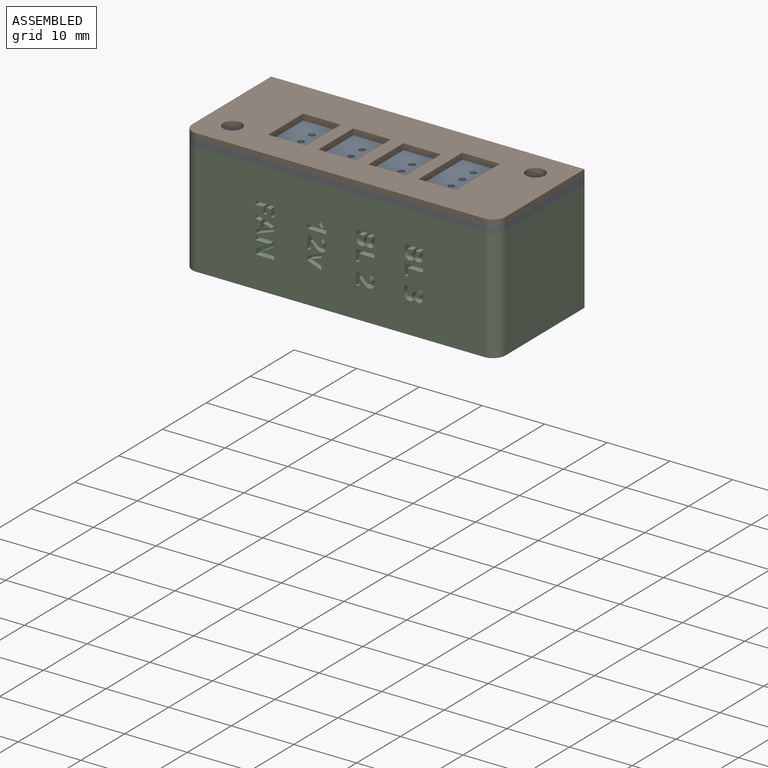
[diagram: assembled view]
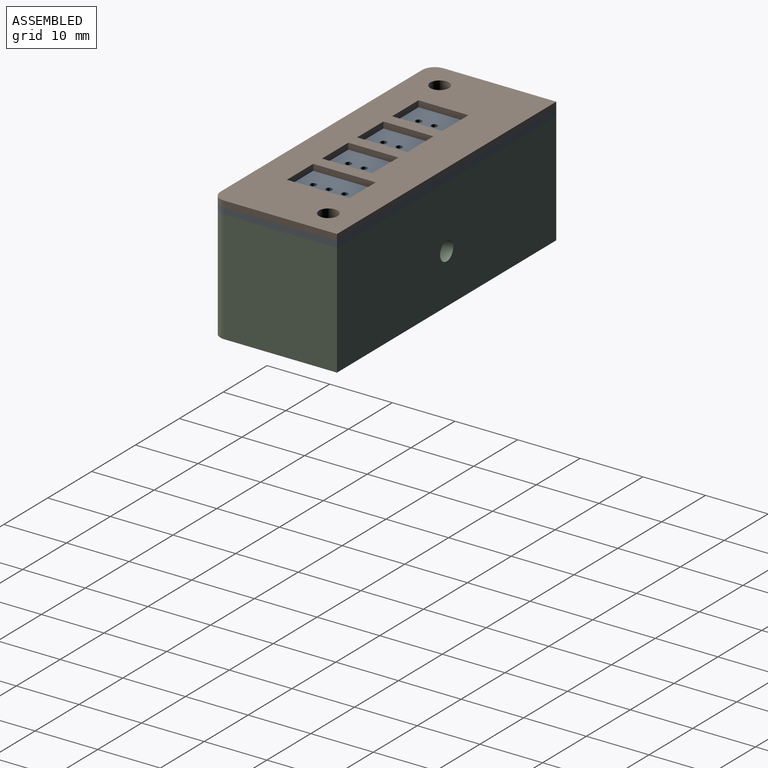
[diagram: assembled view, second angle]
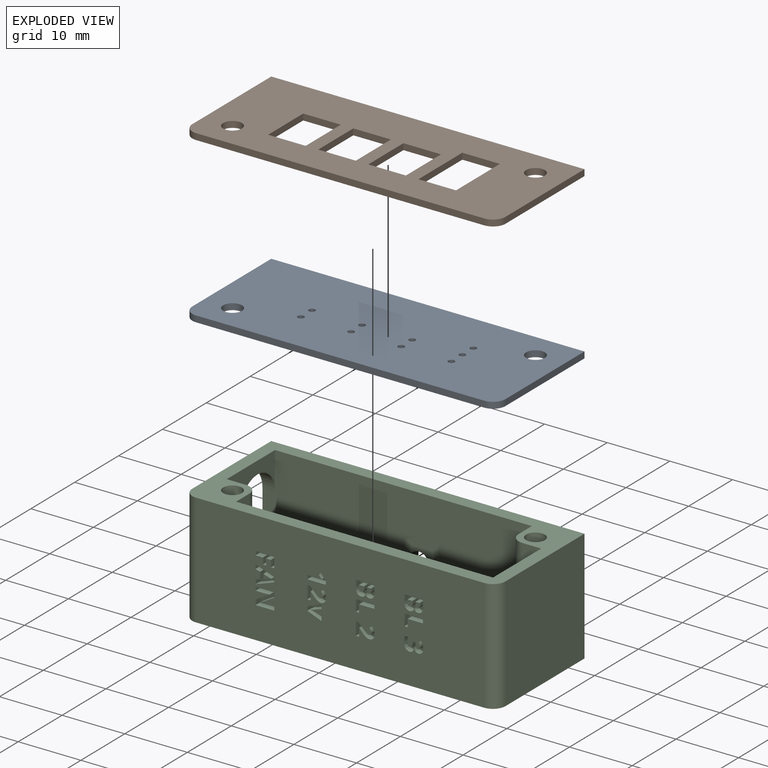
[diagram: exploded view]
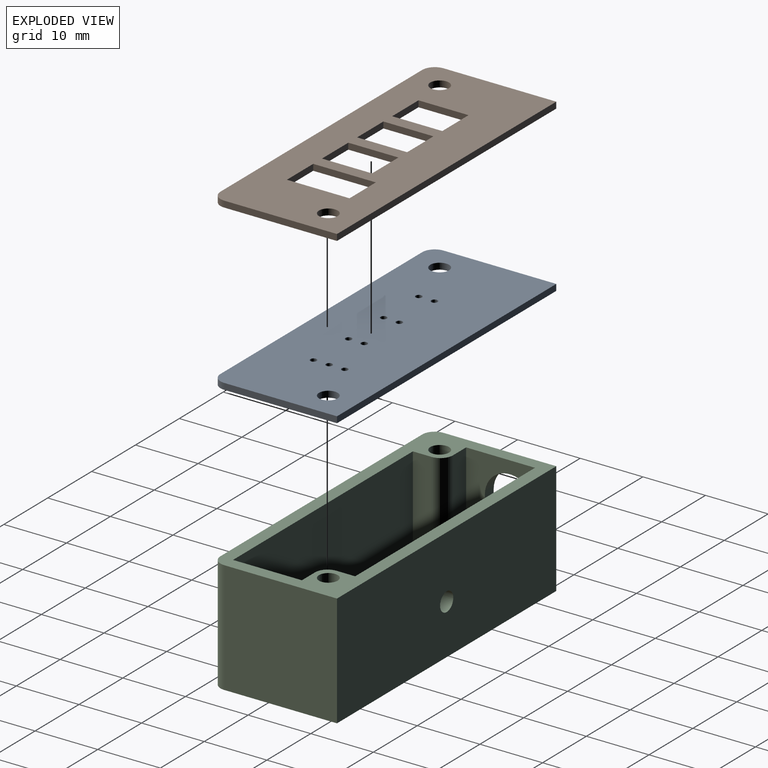
[diagram: exploded view, second angle]
ASSEMBLY  parts=3 mates=2
PART A: 19 faces, bbox 50x20x1 mm
  f0: cylinder r=2mm len=2mm, axis (0,0,-1), area 3.1mm2, adj f1,f5,f6,f7
  f1: plane 18x1mm, normal (-1,0,0), area 18mm2, adj f0,f2,f6,f7
  f2: plane 50x1mm, normal (0,-1,0), area 50mm2, adj f1,f3,f6,f7
  f3: plane 18x1mm, normal (1,0,0), area 18mm2, adj f2,f4,f6,f7
  f4: cylinder r=2mm len=2mm, axis (0,0,-1), area 3.1mm2, adj f3,f5,f6,f7
  f5: plane 46x1mm, normal (0,1,0), area 46mm2, adj f0,f4,f6,f7
  f6: plane 50x20mm, normal (0,0,1), area 977.1mm2, adj f0,f1,f2,f3,f4,f5,f8,f9
  f7: plane 50x20mm, normal (0,0,-1), area 977.1mm2, adj f0,f1,f2,f3,f4,f5,f8,f9
  f8: cylinder r=0.5mm len=1mm, axis (0,0,1), area 3.1mm2, adj f6,f7
  f9: cylinder r=0.5mm len=1mm, axis (0,0,1), area 3.1mm2, adj f6,f7
  f10: cylinder r=0.5mm len=1mm, axis (0,0,1), area 3.1mm2, adj f6,f7
  f11: cylinder r=0.5mm len=1mm, axis (0,0,1), area 3.1mm2, adj f6,f7
  f12: cylinder r=0.5mm len=1mm, axis (0,0,1), area 3.1mm2, adj f6,f7
  f13: cylinder r=0.5mm len=1mm, axis (0,0,1), area 3.1mm2, adj f6,f7
  f14: cylinder r=0.5mm len=1mm, axis (0,0,1), area 3.1mm2, adj f6,f7
  f15: cylinder r=1.5mm len=3mm, axis (0,0,1), area 9.4mm2, adj f6,f7
  f16: cylinder r=0.5mm len=1mm, axis (0,0,1), area 3.1mm2, adj f6,f7
  f17: cylinder r=0.5mm len=1mm, axis (0,0,1), area 3.1mm2, adj f6,f7
  f18: cylinder r=1.5mm len=3mm, axis (0,0,1), area 9.4mm2, adj f6,f7
PART B: 26 faces, bbox 50x20x1 mm
  f0: plane 50x20mm, normal (0,0,1), area 780.1mm2, adj f2,f3,f4,f5,f6,f7,f8,f9
  f1: plane 50x20mm, normal (0,0,-1), area 780.1mm2, adj f2,f3,f4,f5,f6,f7,f8,f9
  f2: cylinder r=2mm len=2mm, axis (0,0,-1), area 3.1mm2, adj f0,f1,f3,f7
  f3: plane 18x1mm, normal (-1,0,0), area 18mm2, adj f0,f1,f2,f4
  f4: plane 50x1mm, normal (0,-1,0), area 50mm2, adj f0,f1,f3,f5
  f5: plane 18x1mm, normal (1,0,0), area 18mm2, adj f0,f1,f4,f6
  f6: cylinder r=2mm len=2mm, axis (0,0,-1), area 3.1mm2, adj f0,f1,f5,f7
  f7: plane 46x1mm, normal (0,1,0), area 46mm2, adj f0,f1,f2,f6
  f8: plane 6x1mm, normal (0,-1,0), area 6mm2, adj f0,f1,f9,f11
  f9: plane 8x1mm, normal (1,0,0), area 8mm2, adj f0,f1,f8,f10
  f10: plane 6x1mm, normal (0,1,0), area 6mm2, adj f0,f1,f9,f11
  f11: plane 8x1mm, normal (-1,0,0), area 8mm2, adj f0,f1,f8,f10
  f12: plane 6x1mm, normal (0,-1,0), area 6mm2, adj f0,f1,f13,f15
  f13: plane 8x1mm, normal (1,0,0), area 8mm2, adj f0,f1,f12,f14
  f14: plane 6x1mm, normal (0,1,0), area 6mm2, adj f0,f1,f13,f15
  f15: plane 8x1mm, normal (-1,0,0), area 8mm2, adj f0,f1,f12,f14
  f16: plane 6x1mm, normal (0,-1,0), area 6mm2, adj f0,f1,f17,f19
  f17: plane 8x1mm, normal (1,0,0), area 8mm2, adj f0,f1,f16,f18
  f18: plane 6x1mm, normal (0,1,0), area 6mm2, adj f0,f1,f17,f19
  f19: plane 8x1mm, normal (-1,0,0), area 8mm2, adj f0,f1,f16,f18
  f20: plane 6x1mm, normal (0,-1,0), area 6mm2, adj f0,f1,f21,f23
  f21: plane 10x1mm, normal (1,0,0), area 10mm2, adj f0,f1,f20,f22
  f22: plane 6x1mm, normal (0,1,0), area 6mm2, adj f0,f1,f21,f23
  f23: plane 10x1mm, normal (-1,0,0), area 10mm2, adj f0,f1,f20,f22
  f24: cylinder r=1.5mm len=3mm, axis (0,0,1), area 9.4mm2, adj f0,f1
  f25: cylinder r=1.5mm len=3mm, axis (0,0,1), area 9.4mm2, adj f0,f1
PART C: 236 faces, bbox 50x20x18 mm
  f0: plane 46x18mm, normal (0,-1,0), area 783.8mm2, adj f8,f9,f10,f11,f26,f27,f28,f29
  f1: plane 16x11mm, normal (-1,0,0), area 176mm2, adj f4,f10,f12,f20
  f2: plane 16x11mm, normal (1,0,0), area 70.9mm2, adj f5,f10,f12,f13,f14,f16
  f3: plane 18x18mm, normal (-1,0,0), area 218.9mm2, adj f5,f7,f8,f10,f11,f12,f13,f14
  f4: plane 41x16mm, normal (0,1,0), area 656mm2, adj f1,f10,f12,f17
  f5: plane 43x16mm, normal (0,-1,0), area 668.9mm2, adj f2,f3,f10,f12,f13,f15,f21
  f6: plane 18x18mm, normal (1,0,0), area 324mm2, adj f7,f9,f10,f11
  f7: plane 50x18mm, normal (0,1,0), area 892.9mm2, adj f3,f6,f10,f11,f15
  f8: cylinder r=2mm len=18mm, axis (0,0,-1), area 56.5mm2, adj f0,f3,f10,f11
  f9: cylinder r=2mm len=18mm, axis (0,0,-1), area 56.5mm2, adj f0,f6,f10,f11
  f10: plane 50x20mm, normal (0,0,1), area 296.4mm2, adj f0,f1,f2,f3,f4,f5,f6,f7
  f11: plane 50x20mm, normal (0,0,-1), area 998.3mm2, adj f0,f3,f6,f7,f8,f9
  f12: plane 48x16mm, normal (0,0,1), area 703.7mm2, adj f1,f2,f3,f4,f5,f14,f16,f17
  f13: cylinder r=4mm len=8mm, axis (-1,0,0), area 25.1mm2, adj f2,f3,f5,f14
  f14: plane 10x2mm, normal (0,1,0), area 20mm2, adj f2,f3,f12,f13
  f15: cylinder r=1.5mm len=3mm, axis (0,1,0), area 18.8mm2, adj f5,f7
  f16: plane 16x3mm, normal (0,1,0), area 48mm2, adj f2,f10,f12,f24
  f17: plane 16x3mm, normal (1,0,0), area 48mm2, adj f4,f10,f12,f24
  f18: cylinder r=1.5mm len=16mm, axis (0,0,-1), area 150.8mm2, adj f10,f19
  f19: plane 3x3mm, normal (0,0,1), area 7.1mm2, adj f18
  f20: plane 16x3mm, normal (0,-1,0), area 48mm2, adj f1,f10,f12,f25
  f21: plane 16x3mm, normal (-1,0,0), area 48mm2, adj f5,f10,f12,f25
  f22: cylinder r=1.5mm len=16mm, axis (0,0,-1), area 150.8mm2, adj f10,f23
  f23: plane 3x3mm, normal (0,0,1), area 7.1mm2, adj f22
  f24: cylinder r=2mm len=16mm, axis (0,0,1), area 50.3mm2, adj f10,f12,f16,f17
  f25: cylinder r=2mm len=16mm, axis (0,0,1), area 50.3mm2, adj f10,f12,f20,f21
  f26: plane 2.97x1mm, normal (0,0,-1), area 3mm2, adj f0,f27,f31,f32
  f27: plane 1.84x1mm, normal (1,0,0), area 1.8mm2, adj f0,f26,f28,f32
  f28: plane 1x0.52mm, normal (0,0,1), area 0.5mm2, adj f0,f27,f29,f32
  f29: plane 1.21x1mm, normal (-1,0,0), area 1.2mm2, adj f0,f28,f30,f32
  f30: plane 2.45x1mm, normal (0,0,1), area 2.5mm2, adj f0,f29,f31,f32
  f31: plane 1x0.63mm, normal (-1,0,0), area 0.6mm2, adj f0,f26,f30,f32
  f32: plane 2.97x1.84mm, normal (0,-1,0), area 2.5mm2, adj f26,f27,f28,f29,f30,f31
  f33: extruded ~1.09x1mm, area 1.1mm2, adj f34,f44,f45,f233
  f34: plane 1x0.77mm, normal (-1,0,0), area 0.8mm2, adj f33,f35,f45,f233
  f35: extruded ~1.29x1mm, area 1.3mm2, adj f34,f44,f45,f233
  f36: plane 1x0.71mm, normal (0.29,0,-0.96), area 0.7mm2, adj f0,f37,f43,f45
  f37: plane 1x0.68mm, normal (1,0,0), area 0.7mm2, adj f0,f36,f38,f45
  f38: plane 2.99x1.05mm, normal (-0.33,0,0.94), area 3.2mm2, adj f0,f37,f39,f45
  f39: plane 1x0.77mm, normal (-1,0,0), area 0.8mm2, adj f0,f38,f40,f45
  f40: plane 2.99x1.05mm, normal (-0.33,0,-0.94), area 3.2mm2, adj f0,f39,f41,f45
  f41: plane 1x0.68mm, normal (1,0,0), area 0.7mm2, adj f0,f40,f42,f45
  f42: plane 1x0.71mm, normal (0.29,0,0.96), area 0.7mm2, adj f0,f41,f43,f45
  f43: plane 1.08x1mm, normal (1,0,0), area 1.1mm2, adj f0,f36,f42,f45
  f44: extruded ~1x0.2mm, area 0.2mm2, adj f33,f35,f45,f233
  f45: plane 2.99x2.88mm, normal (0,-1,0), area 4mm2, adj f33,f34,f35,f36,f37,f38,f39,f40
  f46: plane 1x0.78mm, normal (0,0,1), area 0.8mm2, adj f47,f70,f71,f234
  f47: plane 1x0.39mm, normal (1,0,0), area 0.4mm2, adj f46,f48,f71,f234
  f48: extruded ~1x0.53mm, area 0.7mm2, adj f47,f49,f71,f234
  f49: extruded ~1x0.31mm, area 0.3mm2, adj f48,f50,f71,f234
  f50: extruded ~1x0.38mm, area 0.4mm2, adj f49,f70,f71,f234
  f51: plane 1x0.37mm, normal (-1,0,0), area 0.4mm2, adj f52,f68,f71,f72
  f52: plane 1x0.66mm, normal (0,0,1), area 0.7mm2, adj f51,f53,f71,f72
  f53: plane 1x0.33mm, normal (1,0,0), area 0.3mm2, adj f52,f54,f71,f72
  f54: extruded ~1x0.4mm, area 0.4mm2, adj f53,f55,f71,f72
  f55: extruded ~1x0.25mm, area 0.3mm2, adj f54,f56,f71,f72
  f56: extruded ~1x0.26mm, area 0.3mm2, adj f55,f68,f71,f72
  f57: plane 1x0.93mm, normal (-1,0,0), area 0.9mm2, adj f0,f58,f69,f71
  f58: plane 2.97x1mm, normal (0,0,-1), area 3mm2, adj f0,f57,f59,f71
  f59: plane 1.11x1mm, normal (1,0,0), area 1.1mm2, adj f0,f58,f60,f71
  f60: extruded ~1x0.8mm, area 0.8mm2, adj f0,f59,f61,f71
  f61: extruded ~1x0.63mm, area 0.7mm2, adj f0,f60,f62,f71
  f62: extruded ~1x0.46mm, area 0.5mm2, adj f0,f61,f63,f71
  f63: extruded ~1x0.41mm, area 0.5mm2, adj f0,f62,f64,f71
  f64: plane 1x0.02mm, normal (0,0,1), area 0mm2, adj f0,f63,f65,f71
  f65: extruded ~1x0.33mm, area 0.4mm2, adj f0,f64,f66,f71
  f66: extruded ~1x0.44mm, area 0.5mm2, adj f0,f65,f67,f71
  f67: extruded ~1x0.57mm, area 0.7mm2, adj f0,f66,f69,f71
  f68: extruded ~1x0.37mm, area 0.4mm2, adj f51,f56,f71,f72
  f69: extruded ~1x0.92mm, area 0.9mm2, adj f0,f57,f67,f71
  f70: plane 1x0.41mm, normal (-1,0,0), area 0.4mm2, adj f46,f50,f71,f234
  f71: plane 2.97x2.21mm, normal (0,-1,0), area 4.8mm2, adj f46,f47,f48,f49,f50,f51,f52,f53
  f72: plane 0.85x0.66mm, normal (0,-1,0), area 0.5mm2, adj f51,f52,f53,f54,f55,f56,f68
  f73: plane 1x0.78mm, normal (0,0,1), area 0.8mm2, adj f74,f97,f98,f235
  f74: plane 1x0.39mm, normal (1,0,0), area 0.4mm2, adj f73,f75,f98,f235
  f75: extruded ~1x0.53mm, area 0.7mm2, adj f74,f76,f98,f235
  f76: extruded ~1x0.31mm, area 0.3mm2, adj f75,f77,f98,f235
  f77: extruded ~1x0.38mm, area 0.4mm2, adj f76,f97,f98,f235
  f78: plane 1x0.37mm, normal (-1,0,0), area 0.4mm2, adj f79,f95,f98,f99
  f79: plane 1x0.66mm, normal (0,0,1), area 0.7mm2, adj f78,f80,f98,f99
  f80: plane 1x0.33mm, normal (1,0,0), area 0.3mm2, adj f79,f81,f98,f99
  f81: extruded ~1x0.4mm, area 0.4mm2, adj f80,f82,f98,f99
  f82: extruded ~1x0.25mm, area 0.3mm2, adj f81,f83,f98,f99
  f83: extruded ~1x0.26mm, area 0.3mm2, adj f82,f95,f98,f99
  f84: plane 1x0.93mm, normal (-1,0,0), area 0.9mm2, adj f0,f85,f96,f98
  f85: plane 2.97x1mm, normal (0,0,-1), area 3mm2, adj f0,f84,f86,f98
  f86: plane 1.11x1mm, normal (1,0,0), area 1.1mm2, adj f0,f85,f87,f98
  f87: extruded ~1x0.8mm, area 0.8mm2, adj f0,f86,f88,f98
  f88: extruded ~1x0.63mm, area 0.7mm2, adj f0,f87,f89,f98
  f89: extruded ~1x0.46mm, area 0.5mm2, adj f0,f88,f90,f98
  f90: extruded ~1x0.41mm, area 0.5mm2, adj f0,f89,f91,f98
  f91: plane 1x0.02mm, normal (0,0,1), area 0mm2, adj f0,f90,f92,f98
  f92: extruded ~1x0.33mm, area 0.4mm2, adj f0,f91,f93,f98
  f93: extruded ~1x0.44mm, area 0.5mm2, adj f0,f92,f94,f98
  f94: extruded ~1x0.57mm, area 0.7mm2, adj f0,f93,f96,f98
  f95: extruded ~1x0.37mm, area 0.4mm2, adj f78,f83,f98,f99
  f96: extruded ~1x0.92mm, area 0.9mm2, adj f0,f84,f94,f98
  f97: plane 1x0.41mm, normal (-1,0,0), area 0.4mm2, adj f73,f77,f98,f235
  f98: plane 2.97x2.21mm, normal (0,-1,0), area 4.8mm2, adj f73,f74,f75,f76,f77,f78,f79,f80
  f99: plane 0.85x0.66mm, normal (0,-1,0), area 0.5mm2, adj f78,f79,f80,f81,f82,f83,f95
  f100: plane 1x0.63mm, normal (1,0,0), area 0.6mm2, adj f0,f101,f109,f110
  f101: plane 2.97x1mm, normal (0,0,1), area 3mm2, adj f0,f100,f102,f110
  f102: plane 1x0.52mm, normal (-1,0,0), area 0.5mm2, adj f0,f101,f103,f110
  f103: plane 1x0.96mm, normal (-0.78,0,-0.62), area 1.2mm2, adj f0,f102,f104,f110
  f104: plane 1x0.38mm, normal (0.63,0,-0.78), area 0.5mm2, adj f0,f103,f105,f110
  f105: plane 1x0.34mm, normal (0.78,0,0.63), area 0.4mm2, adj f0,f104,f106,f110
  f106: extruded ~1x0.22mm, area 0.3mm2, adj f0,f105,f107,f110
  f107: plane 1x0.31mm, normal (-0.03,0,-1), area 0.3mm2, adj f0,f106,f108,f110
  f108: plane 1x0.28mm, normal (-0.02,0,-1), area 0.3mm2, adj f0,f107,f109,f110
  f109: plane 1.72x1mm, normal (0,0,-1), area 1.7mm2, adj f0,f100,f108,f110
  f110: plane 2.97x1.48mm, normal (0,-1,0), area 2.3mm2, adj f100,f101,f102,f103,f104,f105,f106,f107
  f111: plane 2.08x1mm, normal (1,0,0), area 2.1mm2, adj f0,f112,f134,f135
  f112: plane 1x0.53mm, normal (0,0,1), area 0.5mm2, adj f0,f111,f113,f135
  f113: plane 1.3x1mm, normal (-1,0,0), area 1.3mm2, adj f0,f112,f114,f135
  f114: plane 1x0.03mm, normal (0,0,1), area 0mm2, adj f0,f113,f115,f135
  f115: plane 1x0.38mm, normal (0.73,0,0.69), area 0.5mm2, adj f0,f114,f116,f135
  f116: extruded ~1x0.54mm, area 0.8mm2, adj f0,f115,f117,f135
  f117: extruded ~1x0.37mm, area 0.4mm2, adj f0,f116,f118,f135
  f118: extruded ~1x0.39mm, area 0.4mm2, adj f0,f117,f119,f135
  f119: extruded ~1x0.42mm, area 0.4mm2, adj f0,f118,f120,f135
  f120: extruded ~1x0.33mm, area 0.4mm2, adj f0,f119,f121,f135
  f121: extruded ~1x0.49mm, area 0.5mm2, adj f0,f120,f122,f135
  f122: extruded ~1x0.38mm, area 0.4mm2, adj f0,f121,f123,f135
  f123: extruded ~1x0.32mm, area 0.3mm2, adj f0,f122,f124,f135
  f124: extruded ~1x0.36mm, area 0.5mm2, adj f0,f123,f125,f135
  f125: plane 1x0.41mm, normal (0.65,0,-0.76), area 0.5mm2, adj f0,f124,f126,f135
  f126: extruded ~1x0.34mm, area 0.4mm2, adj f0,f125,f127,f135
  f127: extruded ~1x0.34mm, area 0.3mm2, adj f0,f126,f128,f135
  f128: extruded ~1x0.26mm, area 0.3mm2, adj f0,f127,f129,f135
  f129: extruded ~1x0.27mm, area 0.3mm2, adj f0,f128,f130,f135
  f130: extruded ~1x0.23mm, area 0.2mm2, adj f0,f129,f131,f135
  f131: extruded ~1x0.24mm, area 0.3mm2, adj f0,f130,f132,f135
  f132: extruded ~1x0.47mm, area 0.6mm2, adj f0,f131,f133,f135
  f133: plane 1x0.75mm, normal (-0.7,0,-0.71), area 1.1mm2, adj f0,f132,f134,f135
  f134: plane 1x0.44mm, normal (0,0,-1), area 0.4mm2, adj f0,f111,f133,f135
  f135: plane 3.02x2.09mm, normal (0,-1,0), area 3.3mm2, adj f111,f112,f113,f114,f115,f116,f117,f118
  f136: plane 2.97x1mm, normal (0,0,-1), area 3mm2, adj f0,f137,f141,f142
  f137: plane 1.84x1mm, normal (1,0,0), area 1.8mm2, adj f0,f136,f138,f142
  f138: plane 1x0.52mm, normal (0,0,1), area 0.5mm2, adj f0,f137,f139,f142
  f139: plane 1.21x1mm, normal (-1,0,0), area 1.2mm2, adj f0,f138,f140,f142
  f140: plane 2.45x1mm, normal (0,0,1), area 2.5mm2, adj f0,f139,f141,f142
  f141: plane 1x0.63mm, normal (-1,0,0), area 0.6mm2, adj f0,f136,f140,f142
  f142: plane 2.97x1.84mm, normal (0,-1,0), area 2.5mm2, adj f136,f137,f138,f139,f140,f141
  f143: extruded ~1x0.47mm, area 0.5mm2, adj f0,f144,f169,f170
  f144: extruded ~1x0.52mm, area 0.6mm2, adj f0,f143,f145,f170
  f145: extruded ~1x0.73mm, area 0.8mm2, adj f0,f144,f146,f170
  f146: extruded ~1x0.97mm, area 1mm2, adj f0,f145,f147,f170
  f147: plane 1x0.43mm, normal (0.56,0,-0.83), area 0.5mm2, adj f0,f146,f148,f170
  f148: extruded ~1x0.34mm, area 0.4mm2, adj f0,f147,f149,f170
  f149: extruded ~1x0.3mm, area 0.3mm2, adj f0,f148,f150,f170
  f150: extruded ~1x0.42mm, area 0.6mm2, adj f0,f149,f151,f170
  f151: extruded ~1x0.31mm, area 0.4mm2, adj f0,f150,f152,f170
  f152: extruded ~1x0.51mm, area 0.5mm2, adj f0,f151,f153,f170
  f153: plane 1x0.23mm, normal (-1,0,0), area 0.2mm2, adj f0,f152,f154,f170
  f154: plane 1x0.48mm, normal (0,0,-1), area 0.5mm2, adj f0,f153,f155,f170
  f155: plane 1x0.23mm, normal (1,0,0), area 0.2mm2, adj f0,f154,f156,f170
  f156: extruded ~1x0.55mm, area 0.6mm2, adj f0,f155,f157,f170
  f157: extruded ~1x0.3mm, area 0.4mm2, adj f0,f156,f158,f170
  f158: extruded ~1x0.34mm, area 0.4mm2, adj f0,f157,f159,f170
  f159: extruded ~1x0.46mm, area 0.5mm2, adj f0,f158,f160,f170
  f160: extruded ~1x0.41mm, area 0.4mm2, adj f0,f159,f161,f170
  f161: extruded ~1x0.38mm, area 0.4mm2, adj f0,f160,f162,f170
  f162: plane 1x0.54mm, normal (0,0,-1), area 0.5mm2, adj f0,f161,f163,f170
  f163: extruded ~1x0.86mm, area 0.9mm2, adj f0,f162,f164,f170
  f164: extruded ~1x0.89mm, area 0.9mm2, adj f0,f163,f165,f170
  f165: extruded ~1x0.67mm, area 0.8mm2, adj f0,f164,f166,f170
  f166: extruded ~1x0.47mm, area 0.5mm2, adj f0,f165,f167,f170
  f167: extruded ~1x0.55mm, area 0.6mm2, adj f0,f166,f168,f170
  f168: plane 1x0.01mm, normal (0,0,1), area 0mm2, adj f0,f167,f169,f170
  f169: extruded ~1x0.47mm, area 0.6mm2, adj f0,f143,f168,f170
  f170: plane 3.06x2.06mm, normal (0,-1,0), area 3.3mm2, adj f143,f144,f145,f146,f147,f148,f149,f150
  f171: plane 2.08x1mm, normal (1,0,0), area 2.1mm2, adj f0,f172,f194,f195
  f172: plane 1x0.53mm, normal (0,0,1), area 0.5mm2, adj f0,f171,f173,f195
  f173: plane 1.3x1mm, normal (-1,0,0), area 1.3mm2, adj f0,f172,f174,f195
  f174: plane 1x0.03mm, normal (0,0,1), area 0mm2, adj f0,f173,f175,f195
  f175: plane 1x0.38mm, normal (0.73,0,0.69), area 0.5mm2, adj f0,f174,f176,f195
  f176: extruded ~1x0.54mm, area 0.8mm2, adj f0,f175,f177,f195
  f177: extruded ~1x0.37mm, area 0.4mm2, adj f0,f176,f178,f195
  f178: extruded ~1x0.39mm, area 0.4mm2, adj f0,f177,f179,f195
  f179: extruded ~1x0.42mm, area 0.4mm2, adj f0,f178,f180,f195
  f180: extruded ~1x0.33mm, area 0.4mm2, adj f0,f179,f181,f195
  f181: extruded ~1x0.49mm, area 0.5mm2, adj f0,f180,f182,f195
  f182: extruded ~1x0.38mm, area 0.4mm2, adj f0,f181,f183,f195
  f183: extruded ~1x0.32mm, area 0.3mm2, adj f0,f182,f184,f195
  f184: extruded ~1x0.36mm, area 0.5mm2, adj f0,f183,f185,f195
  f185: plane 1x0.41mm, normal (0.65,0,-0.76), area 0.5mm2, adj f0,f184,f186,f195
  f186: extruded ~1x0.34mm, area 0.4mm2, adj f0,f185,f187,f195
  f187: extruded ~1x0.34mm, area 0.3mm2, adj f0,f186,f188,f195
  f188: extruded ~1x0.26mm, area 0.3mm2, adj f0,f187,f189,f195
  f189: extruded ~1x0.27mm, area 0.3mm2, adj f0,f188,f190,f195
  f190: extruded ~1x0.23mm, area 0.2mm2, adj f0,f189,f191,f195
  f191: extruded ~1x0.24mm, area 0.3mm2, adj f0,f190,f192,f195
  f192: extruded ~1x0.47mm, area 0.6mm2, adj f0,f191,f193,f195
  f193: plane 1x0.75mm, normal (-0.7,0,-0.71), area 1.1mm2, adj f0,f192,f194,f195
  f194: plane 1x0.44mm, normal (0,0,-1), area 0.4mm2, adj f0,f171,f193,f195
  f195: plane 3.02x2.09mm, normal (0,-1,0), area 3.3mm2, adj f171,f172,f173,f174,f175,f176,f177,f178
  f196: plane 2.27x1mm, normal (0.36,0,-0.93), area 2.4mm2, adj f0,f197,f205,f206
  f197: plane 1x0.64mm, normal (1,0,0), area 0.6mm2, adj f0,f196,f198,f206
  f198: plane 2.27x1mm, normal (0.36,0,0.93), area 2.4mm2, adj f0,f197,f199,f206
  f199: plane 1x0.65mm, normal (-1,0,0), area 0.6mm2, adj f0,f198,f200,f206
  f200: plane 1.3x1mm, normal (-0.32,0,-0.95), area 1.4mm2, adj f0,f199,f201,f206
  f201: extruded ~1x0.47mm, area 0.5mm2, adj f0,f200,f202,f206
  f202: plane 1x0.01mm, normal (-1,0,0), area 0mm2, adj f0,f201,f203,f206
  f203: extruded ~1x0.47mm, area 0.5mm2, adj f0,f202,f204,f206
  f204: plane 1.3x1mm, normal (-0.32,0,0.95), area 1.4mm2, adj f0,f203,f205,f206
  f205: plane 1x0.65mm, normal (-1,0,0), area 0.6mm2, adj f0,f196,f204,f206
  f206: plane 2.37x2.27mm, normal (0,-1,0), area 2.6mm2, adj f196,f197,f198,f199,f200,f201,f202,f203
  f207: plane 1x0.62mm, normal (1,0,0), area 0.6mm2, adj f0,f208,f216,f217
  f208: plane 1.18x1mm, normal (0,0,1), area 1.2mm2, adj f0,f207,f209,f217
  f209: plane 1.01x1mm, normal (1,0,0), area 1mm2, adj f0,f208,f210,f217
  f210: plane 1x0.52mm, normal (0,0,1), area 0.5mm2, adj f0,f209,f211,f217
  f211: plane 1.01x1mm, normal (-1,0,0), area 1mm2, adj f0,f210,f212,f217
  f212: plane 1x0.77mm, normal (0,0,1), area 0.8mm2, adj f0,f211,f213,f217
  f213: plane 1.08x1mm, normal (1,0,0), area 1.1mm2, adj f0,f212,f214,f217
  f214: plane 1x0.52mm, normal (0,0,1), area 0.5mm2, adj f0,f213,f215,f217
  f215: plane 1.71x1mm, normal (-1,0,0), area 1.7mm2, adj f0,f214,f216,f217
  f216: plane 2.97x1mm, normal (0,0,-1), area 3mm2, adj f0,f207,f215,f217
  f217: plane 2.97x1.71mm, normal (0,-1,0), area 2.9mm2, adj f207,f208,f209,f210,f211,f212,f213,f214
  f218: plane 1x0.8mm, normal (1,0,0), area 0.8mm2, adj f0,f219,f231,f232
  f219: plane 2.97x1mm, normal (0,0,1), area 3mm2, adj f0,f218,f220,f232
  f220: plane 1x0.57mm, normal (-1,0,0), area 0.6mm2, adj f0,f219,f221,f232
  f221: plane 1.41x1mm, normal (0,0,-1), area 1.4mm2, adj f0,f220,f222,f232
  f222: extruded ~1x0.82mm, area 0.8mm2, adj f0,f221,f223,f232
  f223: plane 1x0.01mm, normal (-1,0,0), area 0mm2, adj f0,f222,f224,f232
  f224: plane 2.23x1.29mm, normal (-0.5,0,0.87), area 2.6mm2, adj f0,f223,f225,f232
  f225: plane 1x0.8mm, normal (-1,0,0), area 0.8mm2, adj f0,f224,f226,f232
  f226: plane 2.97x1mm, normal (0,0,-1), area 3mm2, adj f0,f225,f227,f232
  f227: plane 1x0.56mm, normal (1,0,0), area 0.6mm2, adj f0,f226,f228,f232
  f228: plane 1.4x1mm, normal (0,0,1), area 1.4mm2, adj f0,f227,f229,f232
  f229: extruded ~1x0.85mm, area 0.9mm2, adj f0,f228,f230,f232
  f230: plane 1x0.02mm, normal (1,0,0), area 0mm2, adj f0,f229,f231,f232
  f231: plane 2.25x1.29mm, normal (0.5,0,-0.87), area 2.6mm2, adj f0,f218,f230,f232
  f232: plane 2.97x2.64mm, normal (0,-1,0), area 5mm2, adj f218,f219,f220,f221,f222,f223,f224,f225
  f233: plane 1.29x0.77mm, normal (0,-1,0), area 0.5mm2, adj f33,f34,f35,f44
  f234: plane 0.92x0.78mm, normal (0,-1,0), area 0.6mm2, adj f46,f47,f48,f49,f50,f70
  f235: plane 0.92x0.78mm, normal (0,-1,0), area 0.6mm2, adj f73,f74,f75,f76,f77,f97
PLACE A rot(axis=(0,0,1),180deg) t=(-8.06,2.06,19.06)mm
PLACE B rot(axis=(0,0,-1),180deg) t=(-8.06,2.06,20.06)mm
PLACE C t=(-8.06,2.06,1.06)mm
MATE fastened A.f15 <-> C.f18  axis (0,0,-1) through (-28.46,-3.34,19.06)mm
MATE fastened B.f24 <-> A.f18  axis (0,0,-1) through (12.34,7.46,20.06)mm
